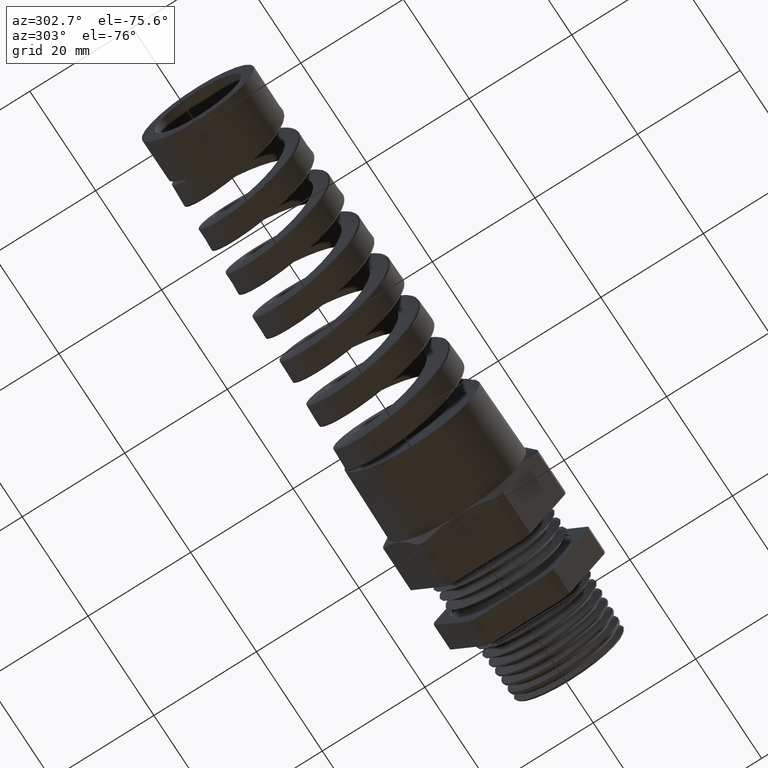
[diagram: clean part render]
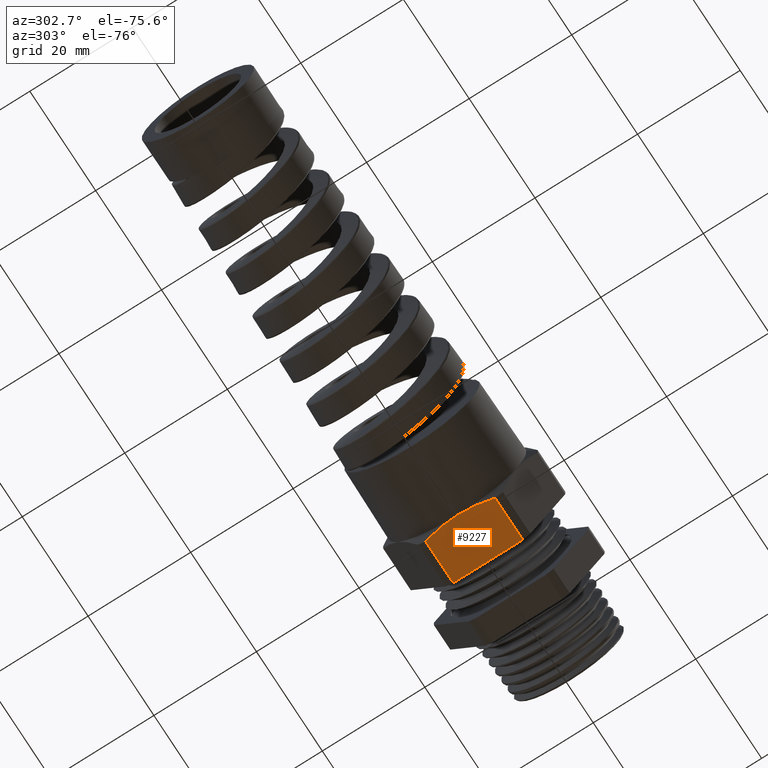
[diagram: same view with one face highlighted and labeled with its STEP entity id]
A machine part, auxiliary view. The second image highlights one B-rep face of the part: STEP entity #9227.
In plain terms, the highlighted planar face has unit normal (0, 0, -1).
Its self-contained STEP definition (entity closure, byte-faithful):
#763 = B_SPLINE_CURVE_WITH_KNOTS ( 'NONE', 3,
 ( #825, #824, #823, #822, #821, #820, #819, #818 ),
 .UNSPECIFIED., .F., .F.,
 ( 4, 2, 2, 4 ),
 ( 0.01432268175415860900, 0.01603362658502655000, 0.01774457141589449300, 0.02116646107763037900 ),
 .UNSPECIFIED. ) ;
#764 = DIRECTION ( 'NONE',  ( -1.000000000000000000, 0.0000000000000000000, 0.0000000000000000000 ) ) ;
#765 = DIRECTION ( 'NONE',  ( 0.0000000000000000000, 0.0000000000000000000, -1.000000000000000000 ) ) ;
#766 = CARTESIAN_POINT ( 'NONE',  ( -2.533243884661831900, -0.2673218285138724300, -0.5299999999999999200 ) ) ;
#767 = AXIS2_PLACEMENT_3D ( 'NONE', #766, #765, #764 ) ;
#768 = PLANE ( 'NONE',  #767 ) ;
#769 = FACE_OUTER_BOUND ( 'NONE', #9172, .T. ) ;
#804 = DIRECTION ( 'NONE',  ( 0.0000000000000000000, -1.000000000000000000, 0.0000000000000000000 ) ) ;
#805 = VECTOR ( 'NONE', #804, 39.37007874015748100 ) ;
#806 = CARTESIAN_POINT ( 'NONE',  ( -0.8007805228795398200, 0.2673218285138724300, -0.5299999999999999200 ) ) ;
#807 = CARTESIAN_POINT ( 'NONE',  ( -0.8120576945526087900, 0.2239487460126229300, -0.5300000000000001400 ) ) ;
#808 = CARTESIAN_POINT ( 'NONE',  ( -0.8213051833091242800, 0.1800017858002749500, -0.5300000000000000300 ) ) ;
#809 = CARTESIAN_POINT ( 'NONE',  ( -0.8308887136721121400, 0.1128690294926517200, -0.5299999999999999200 ) ) ;
#810 = CARTESIAN_POINT ( 'NONE',  ( -0.8333698439661925100, 0.09020032554817357400, -0.5300000000000000300 ) ) ;
#811 = CARTESIAN_POINT ( 'NONE',  ( -0.8366704751326135000, 0.04502350460591600400, -0.5299999999999999200 ) ) ;
#812 = CARTESIAN_POINT ( 'NONE',  ( -0.8374999999999996900, 0.02248601894749249400, -0.5299999999999998000 ) ) ;
#813 = CARTESIAN_POINT ( 'NONE',  ( -0.8375000000000000200, 0.0000000000000000000, -0.5299999999999999200 ) ) ;
#814 = CARTESIAN_POINT ( 'NONE',  ( -0.4708333333333333300, 0.4664000000000000400, -0.5299999999999999200 ) ) ;
#815 = LINE ( 'NONE', #814, #805 ) ;
#817 = B_SPLINE_CURVE_WITH_KNOTS ( 'NONE', 3,
 ( #813, #812, #811, #810, #809, #808, #807, #806 ),
 .UNSPECIFIED., .F., .F.,
 ( 4, 2, 2, 4 ),
 ( 0.02116646107763037900, 0.02287667928950054600, 0.02458689750137070900, 0.02800733392511103900 ),
 .UNSPECIFIED. ) ;
#818 = CARTESIAN_POINT ( 'NONE',  ( -0.8375000000000000200, 0.0000000000000000000, -0.5299999999999999200 ) ) ;
#819 = CARTESIAN_POINT ( 'NONE',  ( -0.8374999999999996900, -0.04499114512754565800, -0.5299999999999999200 ) ) ;
#820 = CARTESIAN_POINT ( 'NONE',  ( -0.8341465868220293600, -0.08977423242168819400, -0.5299999999999999200 ) ) ;
#821 = CARTESIAN_POINT ( 'NONE',  ( -0.8246545637602136200, -0.1566720308095854400, -0.5299999999999999200 ) ) ;
#822 = CARTESIAN_POINT ( 'NONE',  ( -0.8207557576897001100, -0.1789257074002587600, -0.5299999999999999200 ) ) ;
#823 = CARTESIAN_POINT ( 'NONE',  ( -0.8116548691931352300, -0.2233522006217770200, -0.5300000000000000300 ) ) ;
#824 = CARTESIAN_POINT ( 'NONE',  ( -0.8064647693670961000, -0.2454596720255570700, -0.5300000000000000300 ) ) ;
#825 = CARTESIAN_POINT ( 'NONE',  ( -0.8007805228795398200, -0.2673218285138723700, -0.5300000000000000300 ) ) ;
#8803 = VERTEX_POINT ( 'NONE', #12573 ) ;
#9083 = VERTEX_POINT ( 'NONE', #13160 ) ;
#9089 = VERTEX_POINT ( 'NONE', #13149 ) ;
#9091 = EDGE_CURVE ( 'NONE', #9083, #9089, #13148, .T. ) ;
#9098 = VERTEX_POINT ( 'NONE', #13185 ) ;
#9101 = EDGE_CURVE ( 'NONE', #9098, #9102, #13183, .T. ) ;
#9102 = VERTEX_POINT ( 'NONE', #13179 ) ;
#9172 = EDGE_LOOP ( 'NONE', ( #9228, #9229, #9231, #9233, #9234 ) ) ;
#9227 = ADVANCED_FACE ( 'NONE', ( #769 ), #768, .T. ) ;
#9228 = ORIENTED_EDGE ( 'NONE', *, *, #9101, .F. ) ;
#9229 = ORIENTED_EDGE ( 'NONE', *, *, #9230, .T. ) ;
#9230 = EDGE_CURVE ( 'NONE', #9098, #8803, #763, .T. ) ;
#9231 = ORIENTED_EDGE ( 'NONE', *, *, #9232, .T. ) ;
#9232 = EDGE_CURVE ( 'NONE', #8803, #9083, #817, .T. ) ;
#9233 = ORIENTED_EDGE ( 'NONE', *, *, #9091, .T. ) ;
#9234 = ORIENTED_EDGE ( 'NONE', *, *, #9235, .T. ) ;
#9235 = EDGE_CURVE ( 'NONE', #9089, #9102, #815, .T. ) ;
#12573 = CARTESIAN_POINT ( 'NONE',  ( -0.8375000000000000200, 0.0000000000000000000, -0.5299999999999999200 ) ) ;
#13145 = DIRECTION ( 'NONE',  ( 1.000000000000000000, 0.0000000000000000000, 0.0000000000000000000 ) ) ;
#13146 = VECTOR ( 'NONE', #13145, 39.37007874015748100 ) ;
#13147 = CARTESIAN_POINT ( 'NONE',  ( -2.533243884661831900, 0.2673218285138724300, -0.5299999999999999200 ) ) ;
#13148 = LINE ( 'NONE', #13147, #13146 ) ;
#13149 = CARTESIAN_POINT ( 'NONE',  ( -0.4708333333333333300, 0.2673218285138724300, -0.5299999999999999200 ) ) ;
#13160 = CARTESIAN_POINT ( 'NONE',  ( -0.8007805228795398200, 0.2673218285138724300, -0.5299999999999999200 ) ) ;
#13179 = CARTESIAN_POINT ( 'NONE',  ( -0.4708333333333333300, -0.2673218285138723200, -0.5299999999999999200 ) ) ;
#13180 = DIRECTION ( 'NONE',  ( 1.000000000000000000, 0.0000000000000000000, 0.0000000000000000000 ) ) ;
#13181 = VECTOR ( 'NONE', #13180, 39.37007874015748100 ) ;
#13182 = CARTESIAN_POINT ( 'NONE',  ( -2.533243884661831900, -0.2673218285138723200, -0.5299999999999999200 ) ) ;
#13183 = LINE ( 'NONE', #13182, #13181 ) ;
#13185 = CARTESIAN_POINT ( 'NONE',  ( -0.8007805228795398200, -0.2673218285138723700, -0.5300000000000000300 ) ) ;